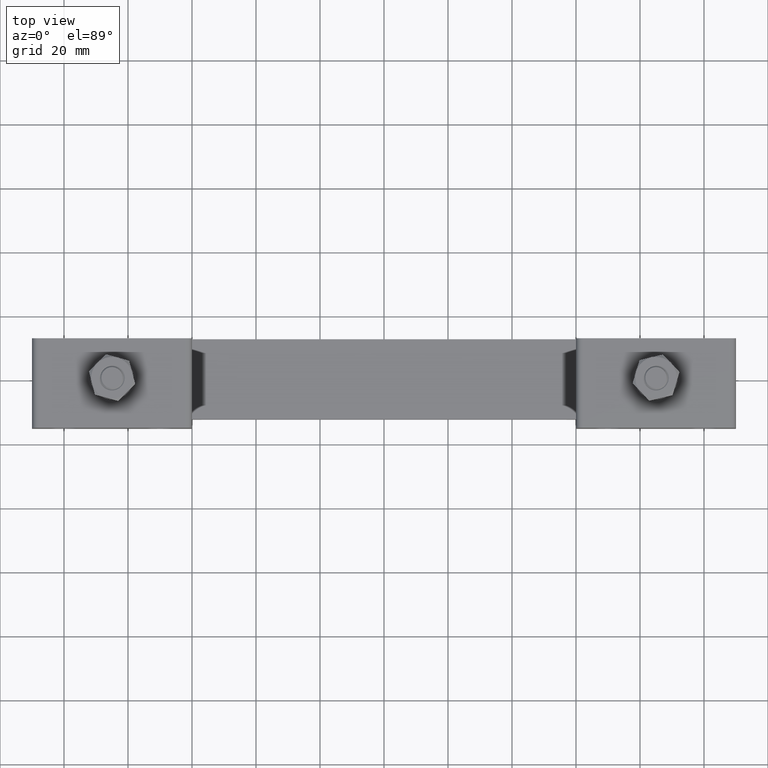
[diagram: clean part render]
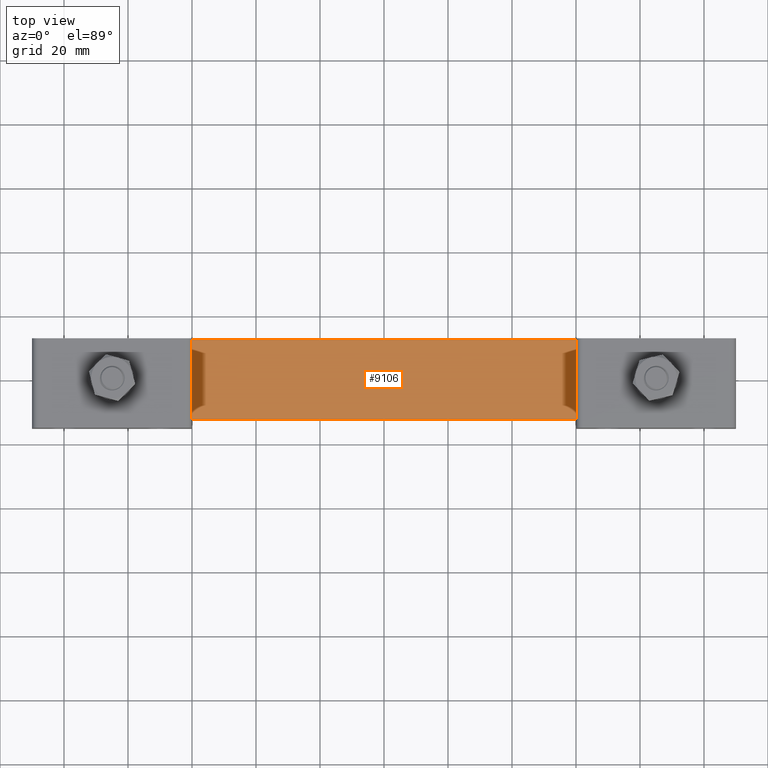
[diagram: same view with one face highlighted and labeled with its STEP entity id]
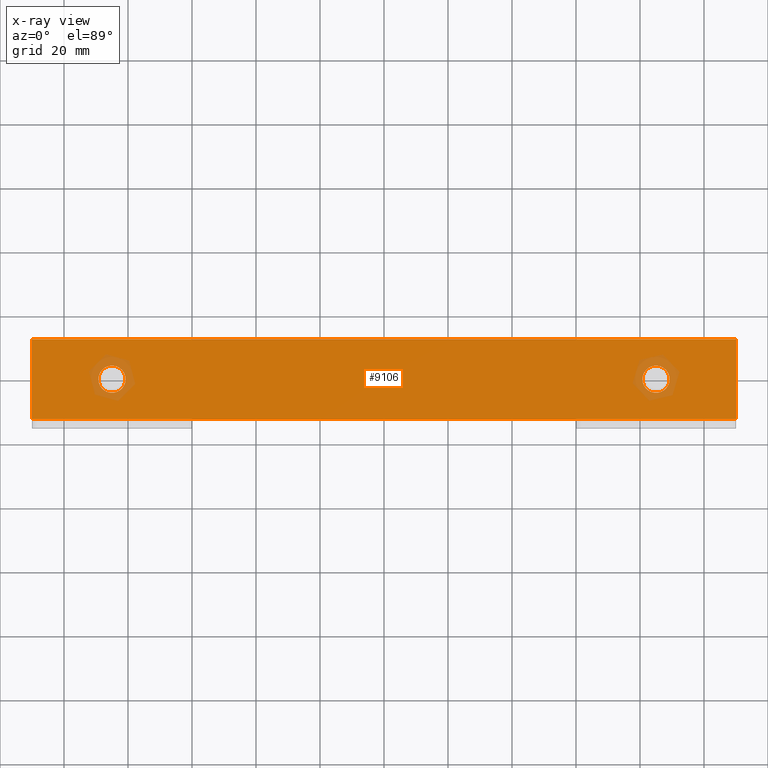
[diagram: x-ray of the same camera — body ghosted, the highlighted face saturated]
A machine part, top view. The second image highlights one B-rep face of the part: STEP entity #9106.
The next image is the same camera in x-ray: the body ghosted, the highlighted face saturated — about 3% of this face is hidden behind the body in this view.
In plain terms, the highlighted planar face has unit normal (0, 0, 1).
Its self-contained STEP definition (entity closure, byte-faithful):
#65 = CIRCLE ( 'NONE', #2685, 4.250000000000003600 ) ;
#1032 = VERTEX_POINT ( 'NONE', #9307 ) ;
#1148 = EDGE_CURVE ( 'NONE', #13322, #9557, #13279, .T. ) ;
#1550 = LINE ( 'NONE', #4899, #18319 ) ;
#1849 = FACE_OUTER_BOUND ( 'NONE', #4287, .T. ) ;
#1995 = LINE ( 'NONE', #18993, #18733 ) ;
#2131 = DIRECTION ( 'NONE',  ( -1.000000000000000000, 0.0000000000000000000, 0.0000000000000000000 ) ) ;
#2151 = DIRECTION ( 'NONE',  ( 0.0000000000000000000, 0.0000000000000000000, -1.000000000000000000 ) ) ;
#2218 = DIRECTION ( 'NONE',  ( -1.000000000000000000, 0.0000000000000000000, 0.0000000000000000000 ) ) ;
#2604 = EDGE_LOOP ( 'NONE', ( #16706, #4340 ) ) ;
#2685 = AXIS2_PLACEMENT_3D ( 'NONE', #7282, #2151, #2218 ) ;
#2724 = EDGE_CURVE ( 'NONE', #16458, #1032, #5090, .T. ) ;
#3016 = CARTESIAN_POINT ( 'NONE',  ( -110.0000000000000000, -12.50000000000000000, 9.000000000000000000 ) ) ;
#3268 = DIRECTION ( 'NONE',  ( 0.0000000000000000000, 0.0000000000000000000, -1.000000000000000000 ) ) ;
#3447 = DIRECTION ( 'NONE',  ( 1.000000000000000000, 0.0000000000000000000, 0.0000000000000000000 ) ) ;
#3549 = CARTESIAN_POINT ( 'NONE',  ( -110.0000000000000000, 12.50000000000000000, 9.000000000000000000 ) ) ;
#4280 = VECTOR ( 'NONE', #5295, 1000.000000000000000 ) ;
#4287 = EDGE_LOOP ( 'NONE', ( #17960, #17036, #15537, #11085 ) ) ;
#4340 = ORIENTED_EDGE ( 'NONE', *, *, #2724, .T. ) ;
#4899 = CARTESIAN_POINT ( 'NONE',  ( -110.0000000000000000, -12.50000000000000000, 9.000000000000000000 ) ) ;
#4929 = CARTESIAN_POINT ( 'NONE',  ( -85.00000000000000000, 0.0000000000000000000, 9.000000000000000000 ) ) ;
#5040 = AXIS2_PLACEMENT_3D ( 'NONE', #6543, #21049, #20918 ) ;
#5090 = CIRCLE ( 'NONE', #11947, 4.250000000000003600 ) ;
#5295 = DIRECTION ( 'NONE',  ( 0.0000000000000000000, 1.000000000000000000, 0.0000000000000000000 ) ) ;
#5670 = FACE_BOUND ( 'NONE', #8244, .T. ) ;
#6186 = DIRECTION ( 'NONE',  ( 0.0000000000000000000, -1.000000000000000000, 0.0000000000000000000 ) ) ;
#6270 = CARTESIAN_POINT ( 'NONE',  ( 85.00000000000000000, 2.081830801498040100E-014, 9.000000000000000000 ) ) ;
#6391 = VERTEX_POINT ( 'NONE', #17421 ) ;
#6543 = CARTESIAN_POINT ( 'NONE',  ( -110.0000000000000000, -12.50000000000000000, 9.000000000000000000 ) ) ;
#6630 = EDGE_CURVE ( 'NONE', #9557, #13322, #10798, .T. ) ;
#7282 = CARTESIAN_POINT ( 'NONE',  ( -85.00000000000000000, 0.0000000000000000000, 9.000000000000000000 ) ) ;
#8015 = DIRECTION ( 'NONE',  ( -1.000000000000000000, 0.0000000000000000000, 0.0000000000000000000 ) ) ;
#8056 = CARTESIAN_POINT ( 'NONE',  ( 85.00000000000000000, 2.081830801498040100E-014, 9.000000000000000000 ) ) ;
#8244 = EDGE_LOOP ( 'NONE', ( #14489, #13710 ) ) ;
#8299 = CARTESIAN_POINT ( 'NONE',  ( 110.0000000000000000, -12.50000000000000000, 9.000000000000000000 ) ) ;
#8480 = DIRECTION ( 'NONE',  ( 0.0000000000000000000, 0.0000000000000000000, -1.000000000000000000 ) ) ;
#8755 = EDGE_CURVE ( 'NONE', #1032, #16458, #65, .T. ) ;
#9106 = ADVANCED_FACE ( 'NONE', ( #18603, #5670, #1849 ), #11537, .T. ) ;
#9127 = AXIS2_PLACEMENT_3D ( 'NONE', #6270, #3268, #8015 ) ;
#9307 = CARTESIAN_POINT ( 'NONE',  ( -89.25000000000001400, 0.0000000000000000000, 9.000000000000000000 ) ) ;
#9515 = EDGE_CURVE ( 'NONE', #20853, #10897, #1550, .T. ) ;
#9557 = VERTEX_POINT ( 'NONE', #9916 ) ;
#9830 = CARTESIAN_POINT ( 'NONE',  ( 110.0000000000000000, 12.50000000000000000, 9.000000000000000000 ) ) ;
#9916 = CARTESIAN_POINT ( 'NONE',  ( 89.25000000000001400, 2.133878290461802200E-014, 9.000000000000000000 ) ) ;
#10599 = EDGE_CURVE ( 'NONE', #6391, #10889, #18735, .T. ) ;
#10664 = VECTOR ( 'NONE', #19832, 1000.000000000000000 ) ;
#10798 = CIRCLE ( 'NONE', #16029, 4.250000000000003600 ) ;
#10889 = VERTEX_POINT ( 'NONE', #16504 ) ;
#10897 = VERTEX_POINT ( 'NONE', #8299 ) ;
#11085 = ORIENTED_EDGE ( 'NONE', *, *, #10599, .T. ) ;
#11537 = PLANE ( 'NONE',  #5040 ) ;
#11676 = DIRECTION ( 'NONE',  ( -1.000000000000000000, 0.0000000000000000000, 0.0000000000000000000 ) ) ;
#11947 = AXIS2_PLACEMENT_3D ( 'NONE', #4929, #8480, #11676 ) ;
#12253 = CARTESIAN_POINT ( 'NONE',  ( 80.75000000000000000, 2.081830801498040100E-014, 9.000000000000000000 ) ) ;
#12920 = LINE ( 'NONE', #9830, #4280 ) ;
#13279 = CIRCLE ( 'NONE', #9127, 4.250000000000003600 ) ;
#13322 = VERTEX_POINT ( 'NONE', #12253 ) ;
#13710 = ORIENTED_EDGE ( 'NONE', *, *, #6630, .T. ) ;
#14489 = ORIENTED_EDGE ( 'NONE', *, *, #1148, .T. ) ;
#15358 = EDGE_CURVE ( 'NONE', #10897, #6391, #12920, .T. ) ;
#15537 = ORIENTED_EDGE ( 'NONE', *, *, #15358, .T. ) ;
#16029 = AXIS2_PLACEMENT_3D ( 'NONE', #8056, #16688, #2131 ) ;
#16458 = VERTEX_POINT ( 'NONE', #19320 ) ;
#16504 = CARTESIAN_POINT ( 'NONE',  ( -110.0000000000000000, 12.50000000000000000, 9.000000000000000000 ) ) ;
#16688 = DIRECTION ( 'NONE',  ( 0.0000000000000000000, 0.0000000000000000000, -1.000000000000000000 ) ) ;
#16706 = ORIENTED_EDGE ( 'NONE', *, *, #8755, .T. ) ;
#17036 = ORIENTED_EDGE ( 'NONE', *, *, #9515, .T. ) ;
#17421 = CARTESIAN_POINT ( 'NONE',  ( 110.0000000000000000, 12.50000000000000000, 9.000000000000000000 ) ) ;
#17960 = ORIENTED_EDGE ( 'NONE', *, *, #19798, .T. ) ;
#18319 = VECTOR ( 'NONE', #3447, 1000.000000000000000 ) ;
#18603 = FACE_BOUND ( 'NONE', #2604, .T. ) ;
#18733 = VECTOR ( 'NONE', #6186, 1000.000000000000000 ) ;
#18735 = LINE ( 'NONE', #3549, #10664 ) ;
#18993 = CARTESIAN_POINT ( 'NONE',  ( -110.0000000000000000, 12.50000000000000000, 9.000000000000000000 ) ) ;
#19320 = CARTESIAN_POINT ( 'NONE',  ( -80.75000000000000000, 5.204748896376247700E-016, 9.000000000000000000 ) ) ;
#19798 = EDGE_CURVE ( 'NONE', #10889, #20853, #1995, .T. ) ;
#19832 = DIRECTION ( 'NONE',  ( -1.000000000000000000, 5.519574696289839900E-017, 0.0000000000000000000 ) ) ;
#20853 = VERTEX_POINT ( 'NONE', #3016 ) ;
#20918 = DIRECTION ( 'NONE',  ( 1.000000000000000000, 0.0000000000000000000, 0.0000000000000000000 ) ) ;
#21049 = DIRECTION ( 'NONE',  ( 0.0000000000000000000, 0.0000000000000000000, 1.000000000000000000 ) ) ;